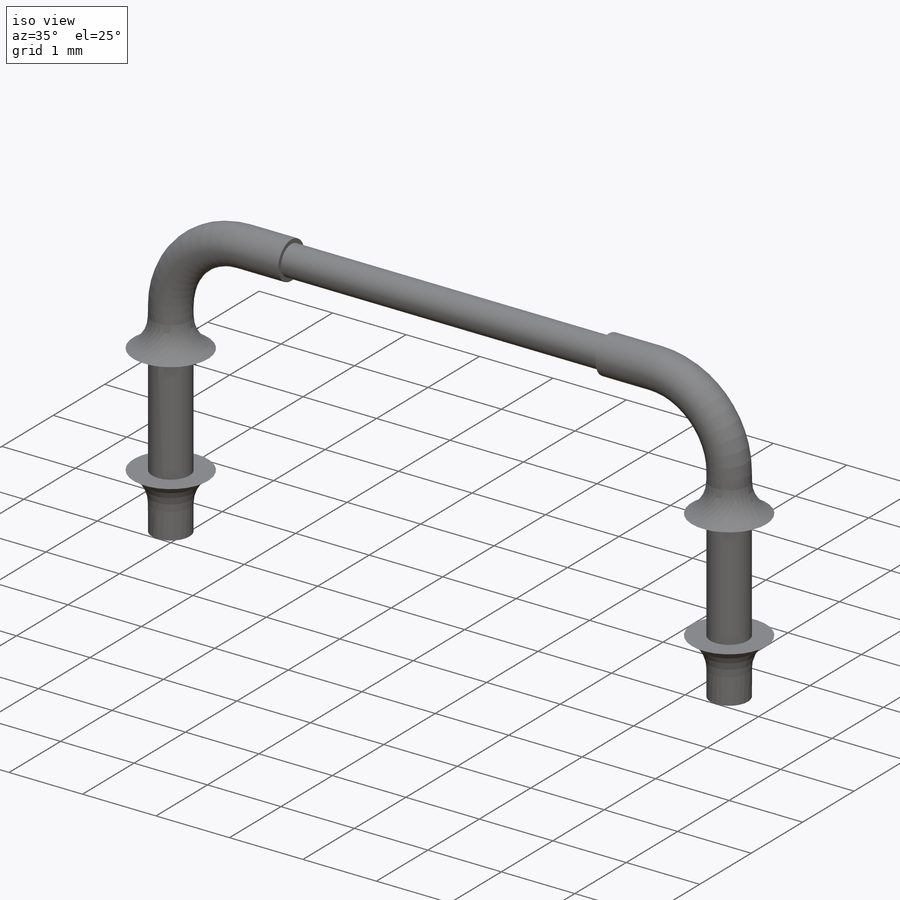
[diagram: iso view]
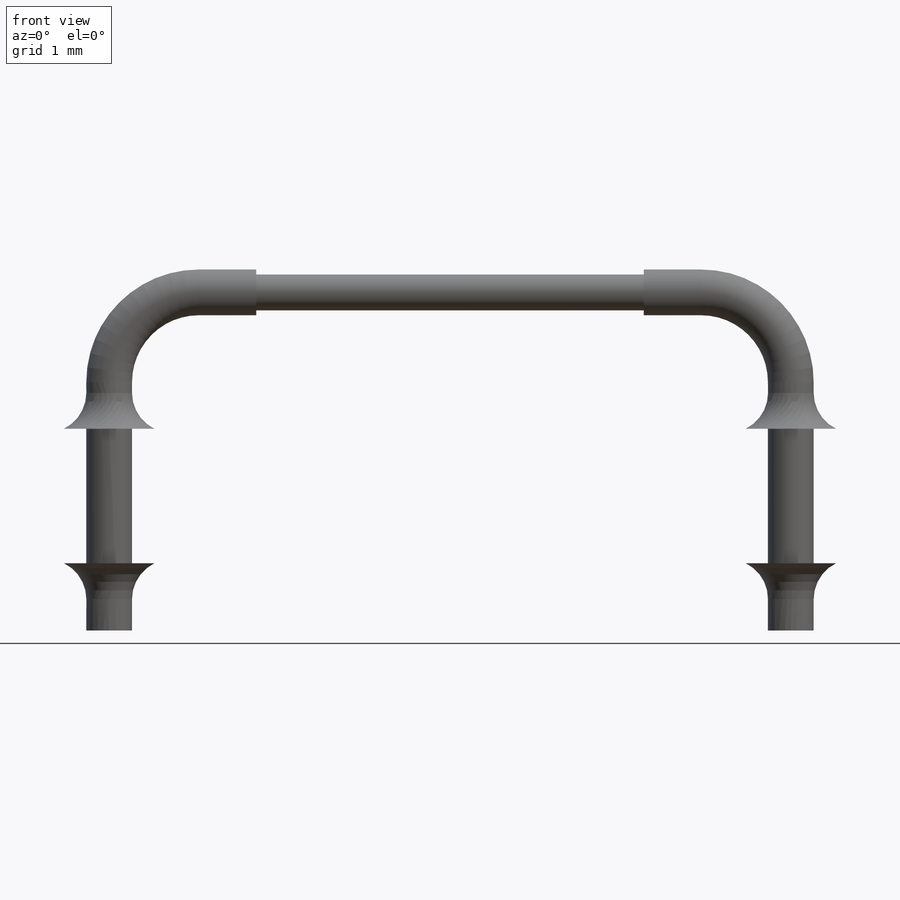
[diagram: front view]
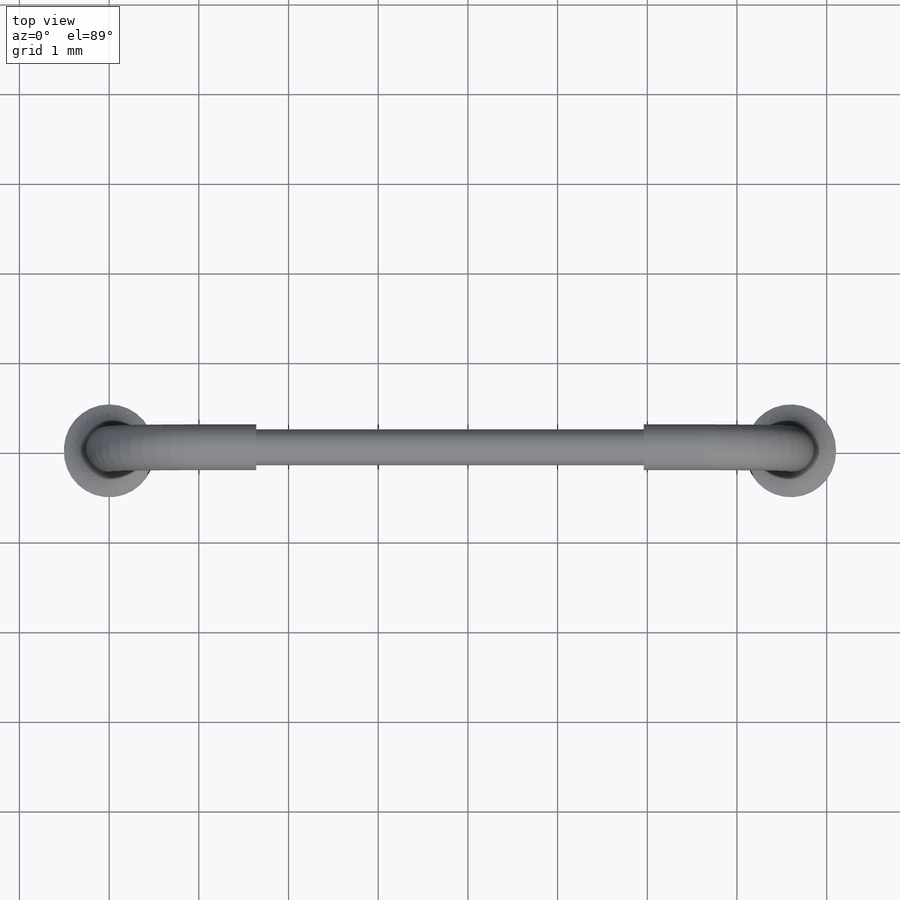
[diagram: top view]
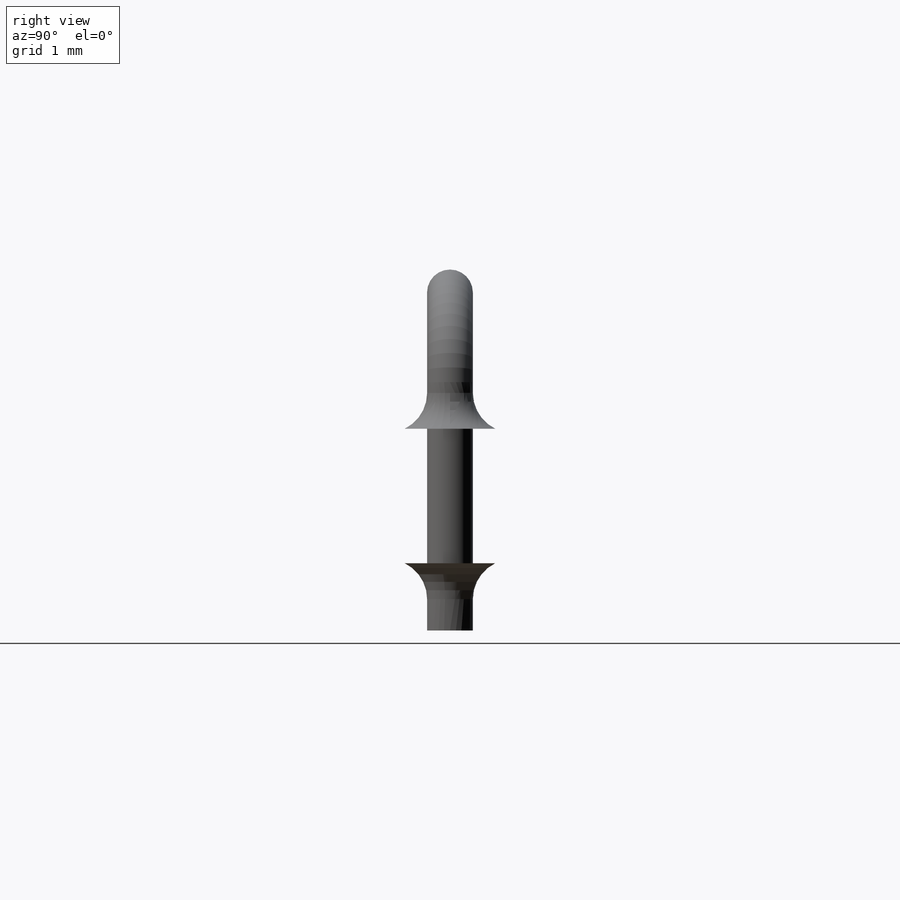
[diagram: right view]
SOLIDWORKS PART (.sldprt)
format: sldprt  version: not decoded by parser v0  size: 322,560 bytes
history: native  units: mm
features: sketch x10, extrude x6, revolve x4, material x1 (+16 scaffold rows collapsed)
feature tree (37):
  scaffold x16  (default folders/planes/origin — collapsed)
  material  "Material <not specified>"
  sketch  "Sketch1"  dims[D1=0.51mm]
  extrude  "Extrude1"  Depth=2mm
  sketch  "Sketch2"  dims[D1=0.0mm]
  extrude  "Extrude2"  Depth=0.77mm
  sketch  "Sketch3"  dims[D2=1.0mm D1=0.0mm]
  revolve  "Revolve1"  Angle=90deg
  sketch  "Sketch4"  dims[D1=0.0mm]
  extrude  "Extrude4"  Depth=0.64mm
  sketch  "Sketch6"  dims[D1=0.4mm]
  extrude  "Extrude5"  Depth=4.32mm
  sketch  "Sketch7"
  extrude  "Extrude6"  Depth=0.64mm
  sketch  "Sketch8"  dims[D2=1.0mm D1=0.0mm]
  revolve  "Revolve3"  Angle=90deg
  sketch  "Sketch9"  dims[D1=0.0mm]
  extrude  "Extrude7"  [1 undecoded]
  sketch  "Sketch10"  dims[D1=1.5mm D2=1.27mm D3=1.27mm D4=0.25mm D5=0.25mm D6=0.25mm D7=0.4mm D8=0.4mm]
  revolve  "Revolve4"  Angle=360deg
  sketch  "Sketch11"  dims[D1=0.25mm D2=0.4mm D3=0.4mm]
  revolve  "Revolve5"  Angle=360deg
decode coverage: 18 of 20 modeling features carry decoded parameters
note: 1 parameter value undecoded
note: suppression state not decoded; provenance and decode notes live in map.json
